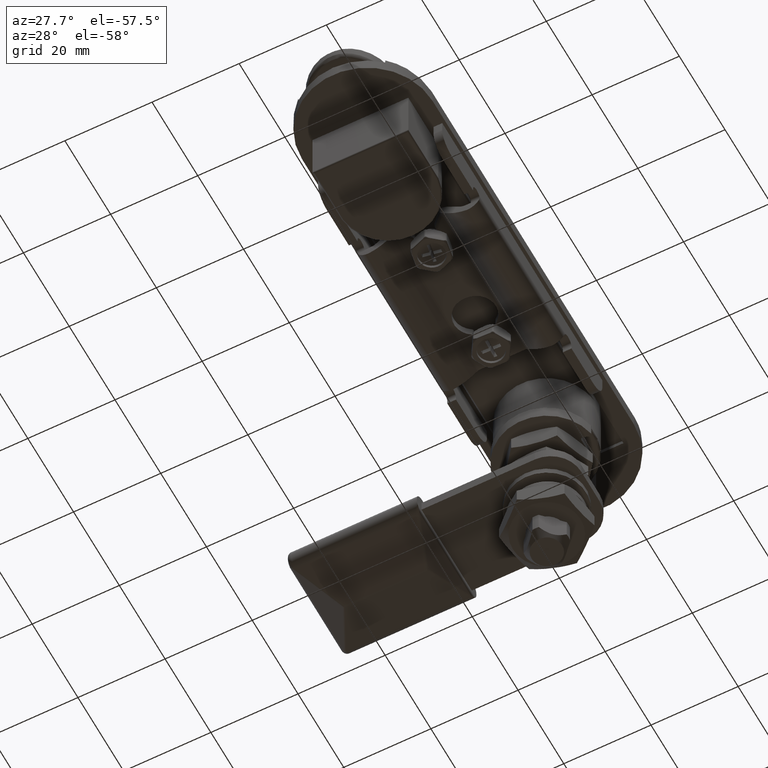
[diagram: clean part render]
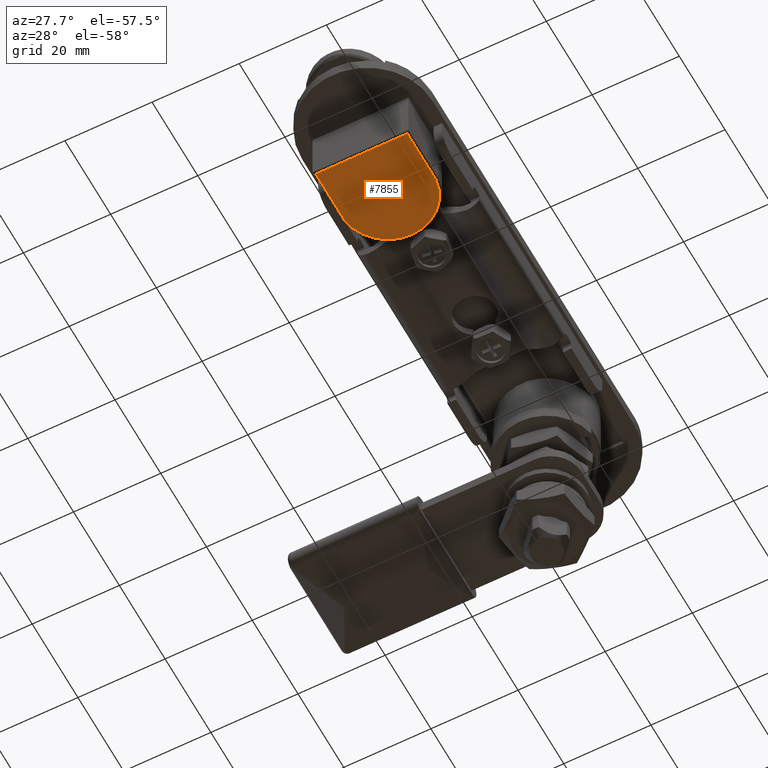
[diagram: same view with one face highlighted and labeled with its STEP entity id]
A machine part, auxiliary view. The second image highlights one B-rep face of the part: STEP entity #7855.
In plain terms, the highlighted planar face has unit normal (0, 0, 1).
Its self-contained STEP definition (entity closure, byte-faithful):
#457=LINE('',#11860,#1049);
#459=LINE('',#11867,#1051);
#461=LINE('',#11899,#1053);
#1049=VECTOR('',#9371,21.);
#1051=VECTOR('',#9379,12.4759142264342);
#1053=VECTOR('',#9389,12.4759142264342);
#1622=PLANE('',#8400);
#1934=FACE_OUTER_BOUND('',#2436,.T.);
#2436=EDGE_LOOP('',(#5418,#5419,#5420,#5421));
#3000=CIRCLE('',#8396,10.55);
#3414=VERTEX_POINT('',#11858);
#3415=VERTEX_POINT('',#11859);
#3417=VERTEX_POINT('',#11866);
#3419=VERTEX_POINT('',#11883);
#4191=EDGE_CURVE('',#3414,#3415,#457,.T.);
#4195=EDGE_CURVE('',#3415,#3417,#459,.T.);
#4198=EDGE_CURVE('',#3417,#3419,#3000,.T.);
#4201=EDGE_CURVE('',#3419,#3414,#461,.T.);
#5418=ORIENTED_EDGE('',*,*,#4191,.F.);
#5419=ORIENTED_EDGE('',*,*,#4201,.F.);
#5420=ORIENTED_EDGE('',*,*,#4198,.F.);
#5421=ORIENTED_EDGE('',*,*,#4195,.F.);
#7855=ADVANCED_FACE('',(#1934),#1622,.F.);
#8396=AXIS2_PLACEMENT_3D('',#11884,#9383,#9384);
#8400=AXIS2_PLACEMENT_3D('',#11904,#9394,#9395);
#9371=DIRECTION('',(1.,0.,0.));
#9379=DIRECTION('',(-2.72447368006173E-17,1.,0.));
#9383=DIRECTION('center_axis',(0.,0.,1.));
#9384=DIRECTION('ref_axis',(-1.25590839889724E-17,1.,0.));
#9389=DIRECTION('',(-1.08978947202469E-16,-1.,0.));
#9394=DIRECTION('center_axis',(0.,0.,1.));
#9395=DIRECTION('ref_axis',(1.,0.,0.));
#11858=CARTESIAN_POINT('',(-10.5,-46.5,-13.5));
#11859=CARTESIAN_POINT('',(10.5,-46.5,-13.5));
#11860=CARTESIAN_POINT('',(5.5,-46.5,-13.5));
#11866=CARTESIAN_POINT('',(10.5,-34.0240857735658,-13.5));
#11867=CARTESIAN_POINT('',(10.5,-1.80879941824948,-13.5));
#11883=CARTESIAN_POINT('',(-10.5,-34.0240857735658,-13.5));
#11884=CARTESIAN_POINT('Origin',(-4.44089209850063E-15,-35.05,-13.5));
#11899=CARTESIAN_POINT('',(-10.5,-42.5587994182495,-13.5));
#11904=CARTESIAN_POINT('Origin',(-4.59665310628189E-15,-38.117598836499,
-13.5));